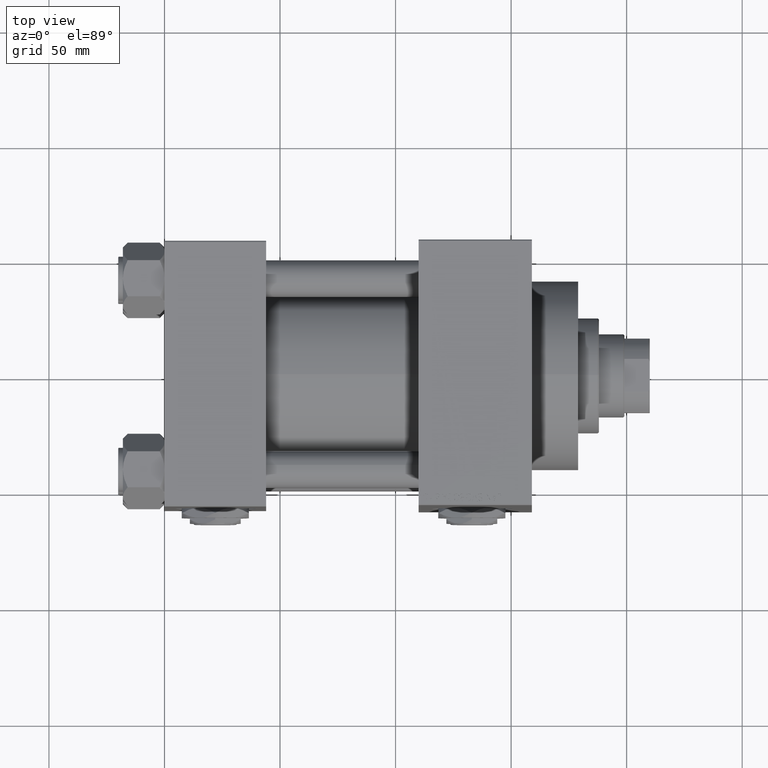
[diagram: clean part render]
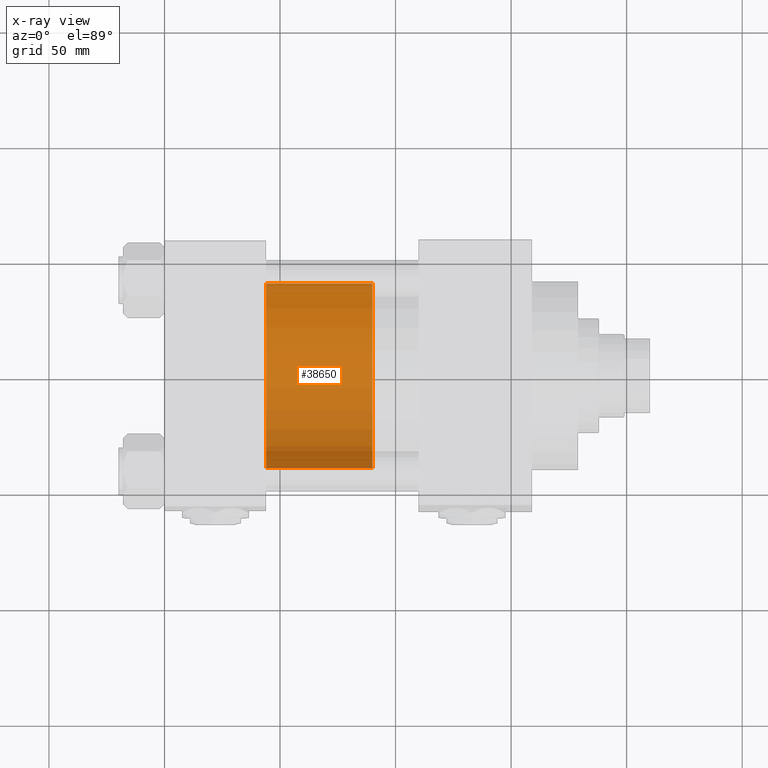
[diagram: x-ray — body ghosted, one internal face saturated and labeled with its STEP entity id]
A machine part, top view, then the same camera in x-ray: the body is ghosted and one INTERNAL B-rep face — a face not visible from any outside direction — is saturated and labeled: STEP entity #38650.
In plain terms, the highlighted cylindrical surface (partial cylindrical patch) has radius 40 mm, axis along (-1, 0, 0).
Its self-contained STEP definition (entity closure, byte-faithful):
#3161 = CARTESIAN_POINT ( 'NONE',  ( 40.00000000000000000, 4.898587196589413026E-15, 0.000000000000000000 ) ) ;
#6053 = FACE_OUTER_BOUND ( 'NONE', #15447, .T. ) ;
#6867 = ORIENTED_EDGE ( 'NONE', *, *, #13144, .F. ) ;
#7115 = AXIS2_PLACEMENT_3D ( 'NONE', #46998, #25076, #36167 ) ;
#11408 = ORIENTED_EDGE ( 'NONE', *, *, #42599, .F. ) ;
#12952 = DIRECTION ( 'NONE',  ( -0.000000000000000000, -0.000000000000000000, -1.000000000000000000 ) ) ;
#13144 = EDGE_CURVE ( 'NONE', #28844, #13174, #28343, .T. ) ;
#13174 = VERTEX_POINT ( 'NONE', #41141 ) ;
#15447 = EDGE_LOOP ( 'NONE', ( #11408, #31606, #16322, #6867 ) ) ;
#16322 = ORIENTED_EDGE ( 'NONE', *, *, #33978, .T. ) ;
#17833 = CARTESIAN_POINT ( 'NONE',  ( 40.00000000000000000, 4.898587196589413026E-15, 46.00000000000000000 ) ) ;
#19731 = DIRECTION ( 'NONE',  ( 0.000000000000000000, 0.000000000000000000, 1.000000000000000000 ) ) ;
#20864 = VECTOR ( 'NONE', #12952, 1000.000000000000000 ) ;
#23146 = CIRCLE ( 'NONE', #29574, 40.00000000000000000 ) ;
#24309 = LINE ( 'NONE', #32118, #20864 ) ;
#25076 = DIRECTION ( 'NONE',  ( 0.000000000000000000, 0.000000000000000000, 1.000000000000000000 ) ) ;
#27290 = DIRECTION ( 'NONE',  ( 1.000000000000000000, 0.000000000000000000, 0.000000000000000000 ) ) ;
#28343 = LINE ( 'NONE', #47217, #39806 ) ;
#28844 = VERTEX_POINT ( 'NONE', #29851 ) ;
#28956 = DIRECTION ( 'NONE',  ( -0.000000000000000000, -0.000000000000000000, -1.000000000000000000 ) ) ;
#29200 = CYLINDRICAL_SURFACE ( 'NONE', #47347, 40.00000000000000000 ) ;
#29574 = AXIS2_PLACEMENT_3D ( 'NONE', #42376, #19731, #27290 ) ;
#29652 = VERTEX_POINT ( 'NONE', #17833 ) ;
#29851 = CARTESIAN_POINT ( 'NONE',  ( -40.00000000000000000, 0.000000000000000000, 46.00000000000000000 ) ) ;
#31606 = ORIENTED_EDGE ( 'NONE', *, *, #37261, .T. ) ;
#32118 = CARTESIAN_POINT ( 'NONE',  ( 40.00000000000000000, 4.898587196589413026E-15, 46.00000000000000000 ) ) ;
#33978 = EDGE_CURVE ( 'NONE', #49817, #13174, #34415, .T. ) ;
#34415 = CIRCLE ( 'NONE', #7115, 40.00000000000000000 ) ;
#36167 = DIRECTION ( 'NONE',  ( 1.000000000000000000, 0.000000000000000000, 0.000000000000000000 ) ) ;
#37261 = EDGE_CURVE ( 'NONE', #29652, #49817, #24309, .T. ) ;
#38650 = ADVANCED_FACE ( 'NONE', ( #6053 ), #29200, .T. ) ;
#39806 = VECTOR ( 'NONE', #46720, 1000.000000000000000 ) ;
#41141 = CARTESIAN_POINT ( 'NONE',  ( -40.00000000000000000, 0.000000000000000000, 0.000000000000000000 ) ) ;
#41270 = DIRECTION ( 'NONE',  ( -1.000000000000000000, 0.000000000000000000, 0.000000000000000000 ) ) ;
#42376 = CARTESIAN_POINT ( 'NONE',  ( 0.000000000000000000, 0.000000000000000000, 46.00000000000000000 ) ) ;
#42599 = EDGE_CURVE ( 'NONE', #29652, #28844, #23146, .T. ) ;
#45049 = CARTESIAN_POINT ( 'NONE',  ( 0.000000000000000000, 0.000000000000000000, 46.00000000000000000 ) ) ;
#46720 = DIRECTION ( 'NONE',  ( -0.000000000000000000, -0.000000000000000000, -1.000000000000000000 ) ) ;
#46998 = CARTESIAN_POINT ( 'NONE',  ( 0.000000000000000000, 0.000000000000000000, 0.000000000000000000 ) ) ;
#47217 = CARTESIAN_POINT ( 'NONE',  ( -40.00000000000000000, 0.000000000000000000, 46.00000000000000000 ) ) ;
#47347 = AXIS2_PLACEMENT_3D ( 'NONE', #45049, #28956, #41270 ) ;
#49817 = VERTEX_POINT ( 'NONE', #3161 ) ;